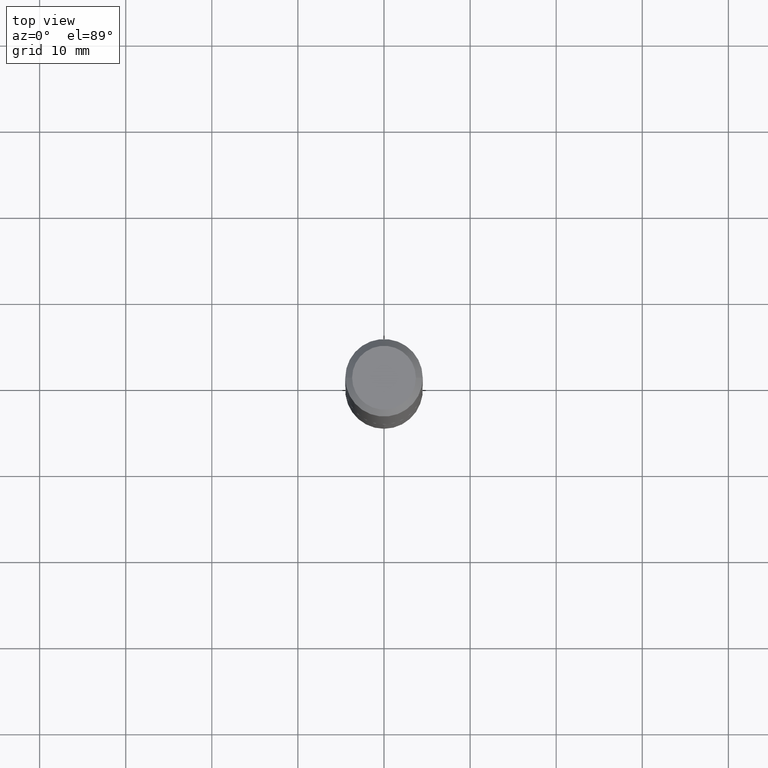
[diagram: clean part render]
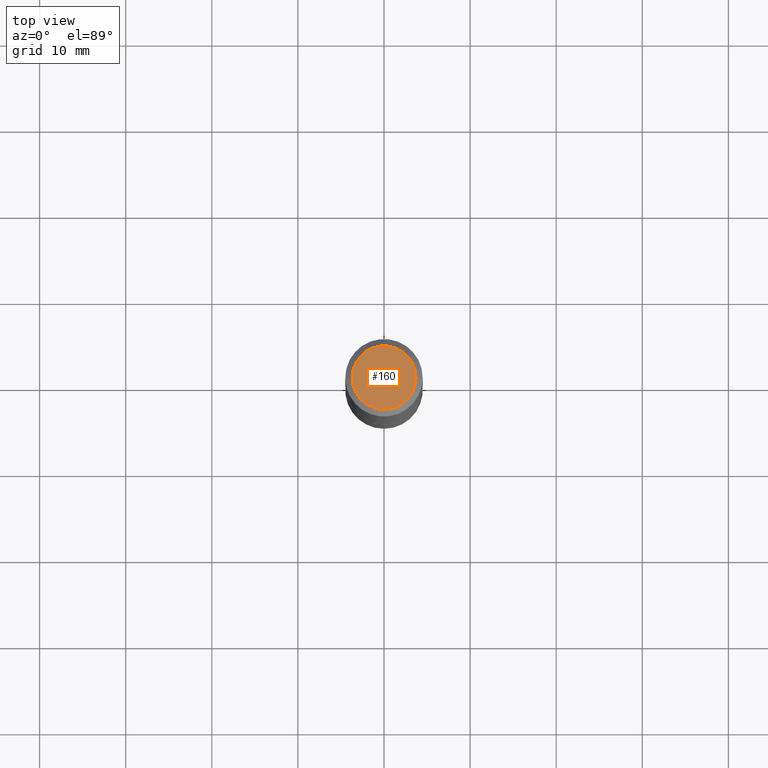
[diagram: same view with one face highlighted and labeled with its STEP entity id]
A machine part, top view. The second image highlights one B-rep face of the part: STEP entity #160.
In plain terms, the highlighted planar face has unit normal (0, -0, -1).
Its self-contained STEP definition (entity closure, byte-faithful):
#20 = CARTESIAN_POINT ( 'NONE',  ( -2.949913012720688878E-47, 4.211693974208522336E-33, 1.206277097160143859E-18 ) ) ;
#25 = FACE_OUTER_BOUND ( 'NONE', #43, .T. ) ;
#34 = CIRCLE ( 'NONE', #280, 0.1459000000000000019 ) ;
#40 = EDGE_CURVE ( 'NONE', #222, #125, #364, .T. ) ;
#43 = EDGE_LOOP ( 'NONE', ( #374, #346 ) ) ;
#51 = DIRECTION ( 'NONE',  ( -2.445468806185136597E-29, 3.491481338843145583E-15, 1.000000000000000000 ) ) ;
#91 = AXIS2_PLACEMENT_3D ( 'NONE', #127, #51, #185 ) ;
#125 = VERTEX_POINT ( 'NONE', #311 ) ;
#127 = CARTESIAN_POINT ( 'NONE',  ( -2.949913012720688878E-47, 4.211693974208522336E-33, 1.206277097160143859E-18 ) ) ;
#139 = PLANE ( 'NONE',  #224 ) ;
#160 = ADVANCED_FACE ( 'NONE', ( #25 ), #139, .F. ) ;
#185 = DIRECTION ( 'NONE',  ( 1.000000000000000000, -6.982962677686266711E-15, 4.876233736924995224E-29 ) ) ;
#196 = DIRECTION ( 'NONE',  ( 1.000000000000000000, -6.982962677686266711E-15, 4.876233736924995224E-29 ) ) ;
#202 = CARTESIAN_POINT ( 'NONE',  ( 0.1459000000000000019, -1.162696335009471270E-15, 1.206277097167771312E-18 ) ) ;
#222 = VERTEX_POINT ( 'NONE', #202 ) ;
#224 = AXIS2_PLACEMENT_3D ( 'NONE', #292, #294, #352 ) ;
#227 = EDGE_CURVE ( 'NONE', #125, #222, #34, .T. ) ;
#280 = AXIS2_PLACEMENT_3D ( 'NONE', #20, #326, #196 ) ;
#292 = CARTESIAN_POINT ( 'NONE',  ( -1.474956506360344439E-47, 2.105846987104261168E-33, 6.031385485800719294E-19 ) ) ;
#294 = DIRECTION ( 'NONE',  ( 2.438088387897960049E-29, -3.491481338843145188E-15, -1.000000000000000000 ) ) ;
#311 = CARTESIAN_POINT ( 'NONE',  ( -0.1459000000000000019, 1.073368650593849729E-15, 1.206277097152828214E-18 ) ) ;
#326 = DIRECTION ( 'NONE',  ( -2.445468806185136597E-29, 3.491481338843145583E-15, 1.000000000000000000 ) ) ;
#346 = ORIENTED_EDGE ( 'NONE', *, *, #40, .T. ) ;
#352 = DIRECTION ( 'NONE',  ( -1.000000000000000000, 6.982962677686265922E-15, -4.876176775795935793E-29 ) ) ;
#364 = CIRCLE ( 'NONE', #91, 0.1459000000000000019 ) ;
#374 = ORIENTED_EDGE ( 'NONE', *, *, #227, .T. ) ;